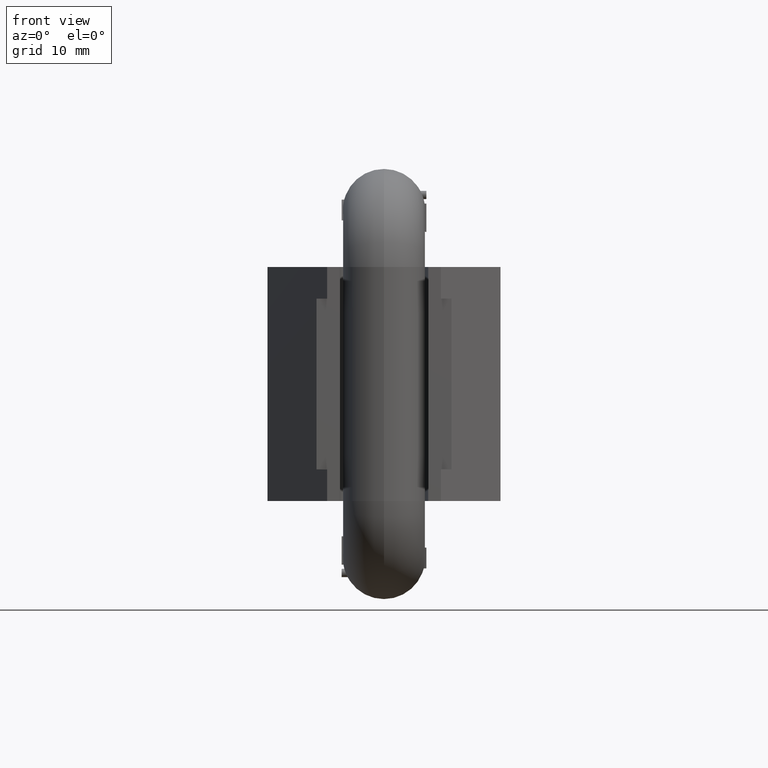
[diagram: clean part render]
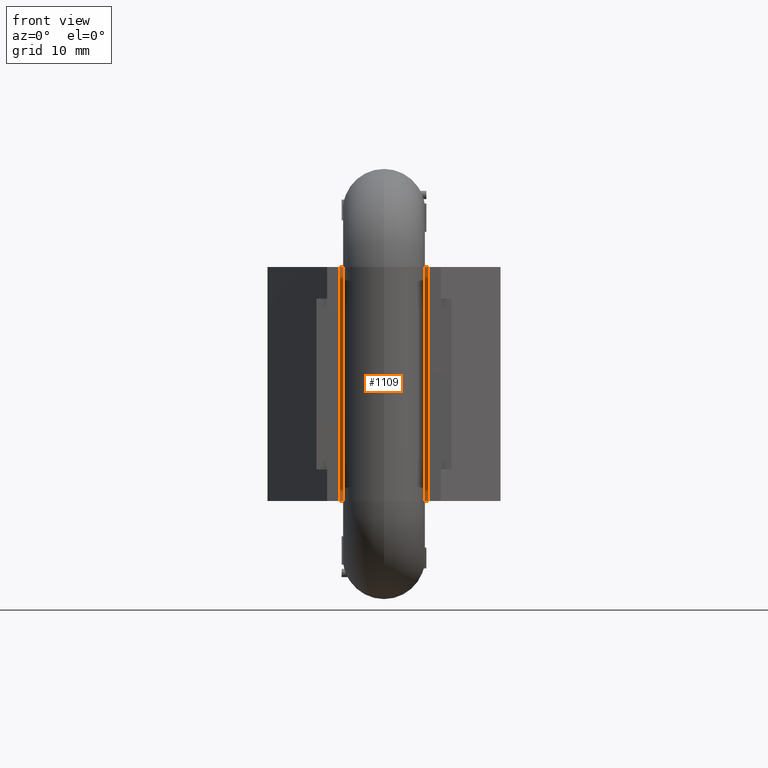
[diagram: same view with one face highlighted and labeled with its STEP entity id]
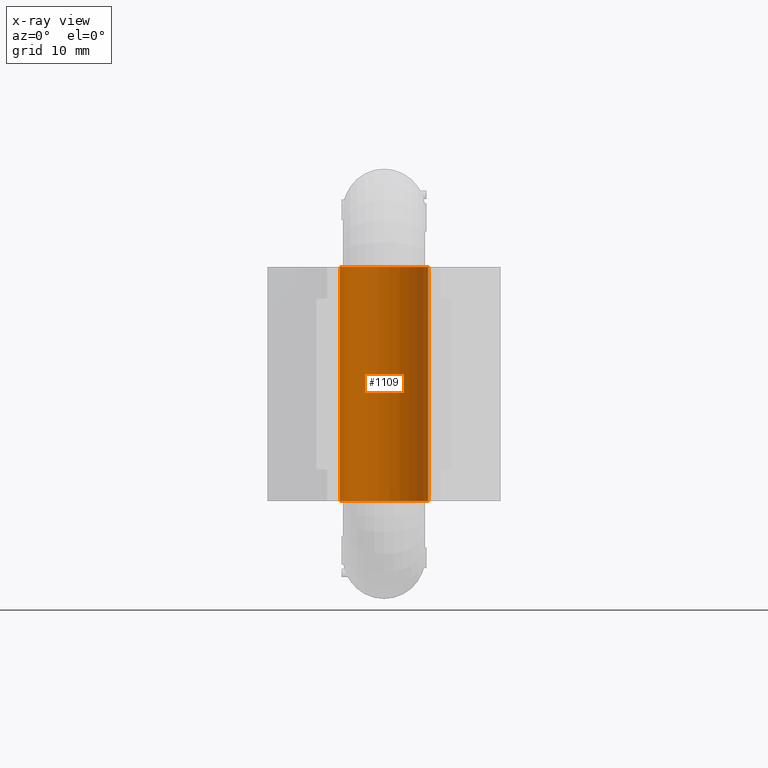
[diagram: x-ray of the same camera — body ghosted, the highlighted face saturated]
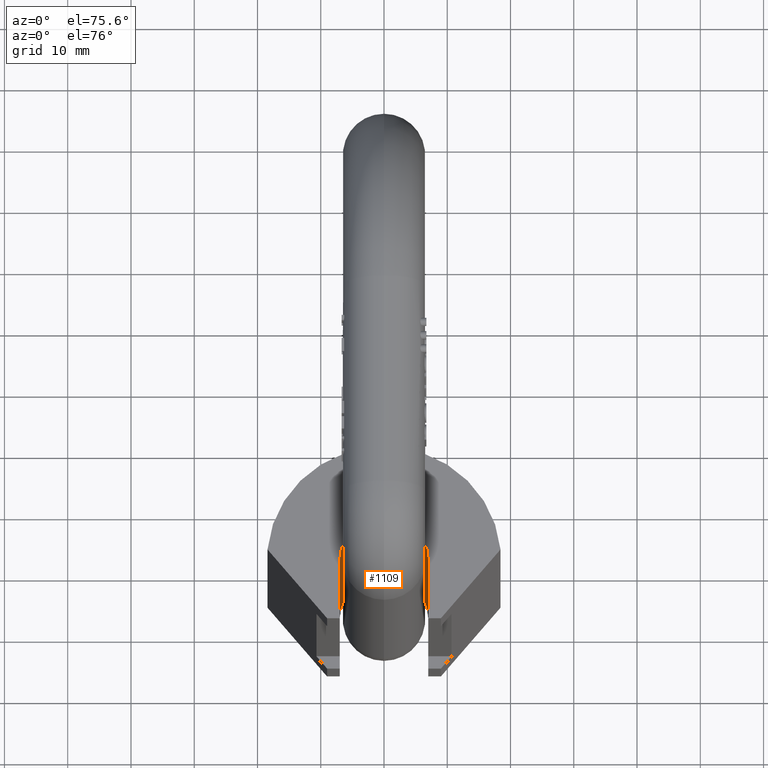
[diagram: same view with one face highlighted and labeled with its STEP entity id]
A machine part, front view. The second image highlights one B-rep face of the part: STEP entity #1109.
The next image is the same camera in x-ray: the body ghosted, the highlighted face saturated — about 0% of this face is hidden behind the body in this view.
A second angle (auxiliary view) of the same face is appended — the face is thin or edge-on in the first view.
In plain terms, the highlighted cylindrical surface (partial cylindrical patch) has radius 7 mm, axis along (0, 0, -1).
Its self-contained STEP definition (entity closure, byte-faithful):
#1109=ADVANCED_FACE('',(#1490),#1458,.F.);
#1458=CYLINDRICAL_SURFACE('',#6739,7.);
#1490=FACE_OUTER_BOUND('',#1832,.T.);
#1832=EDGE_LOOP('',(#2354,#2355,#2356,#2357));
#2232=CIRCLE('',#6724,7.);
#2233=CIRCLE('',#6726,7.);
#2354=ORIENTED_EDGE('',*,*,#4836,.T.);
#2355=ORIENTED_EDGE('',*,*,#4867,.F.);
#2356=ORIENTED_EDGE('',*,*,#4827,.F.);
#2357=ORIENTED_EDGE('',*,*,#4866,.T.);
#4188=VERTEX_POINT('',#8224);
#4189=VERTEX_POINT('',#8226);
#4196=VERTEX_POINT('',#8242);
#4197=VERTEX_POINT('',#8244);
#4827=EDGE_CURVE('',#4188,#4189,#2232,.T.);
#4836=EDGE_CURVE('',#4197,#4196,#2233,.T.);
#4866=EDGE_CURVE('',#4188,#4197,#5810,.T.);
#4867=EDGE_CURVE('',#4189,#4196,#5811,.T.);
#5810=LINE('',#8301,#6212);
#5811=LINE('',#8303,#6213);
#6212=VECTOR('',#7111,1.);
#6213=VECTOR('',#7114,1.);
#6724=AXIS2_PLACEMENT_3D('',#8225,#7046,#7047);
#6726=AXIS2_PLACEMENT_3D('',#8243,#7058,#7059);
#6739=AXIS2_PLACEMENT_3D('',#8304,#7115,#7116);
#7046=DIRECTION('',(0.,0.,-1.));
#7047=DIRECTION('',(1.,0.,0.));
#7058=DIRECTION('',(0.,0.,-1.));
#7059=DIRECTION('',(1.,0.,0.));
#7111=DIRECTION('',(0.,0.,-1.));
#7114=DIRECTION('',(0.,0.,-1.));
#7115=DIRECTION('',(0.,0.,-1.));
#7116=DIRECTION('',(-1.,0.,0.));
#8224=CARTESIAN_POINT('',(-7.,9.5,18.5));
#8225=CARTESIAN_POINT('',(0.,9.5,18.5));
#8226=CARTESIAN_POINT('',(7.,9.5,18.5));
#8242=CARTESIAN_POINT('',(7.,9.5,-18.5));
#8243=CARTESIAN_POINT('',(0.,9.5,-18.5));
#8244=CARTESIAN_POINT('',(-7.,9.5,-18.5));
#8301=CARTESIAN_POINT('',(-7.,9.5,18.5));
#8303=CARTESIAN_POINT('',(7.,9.5,18.5));
#8304=CARTESIAN_POINT('',(0.,9.5,18.5));